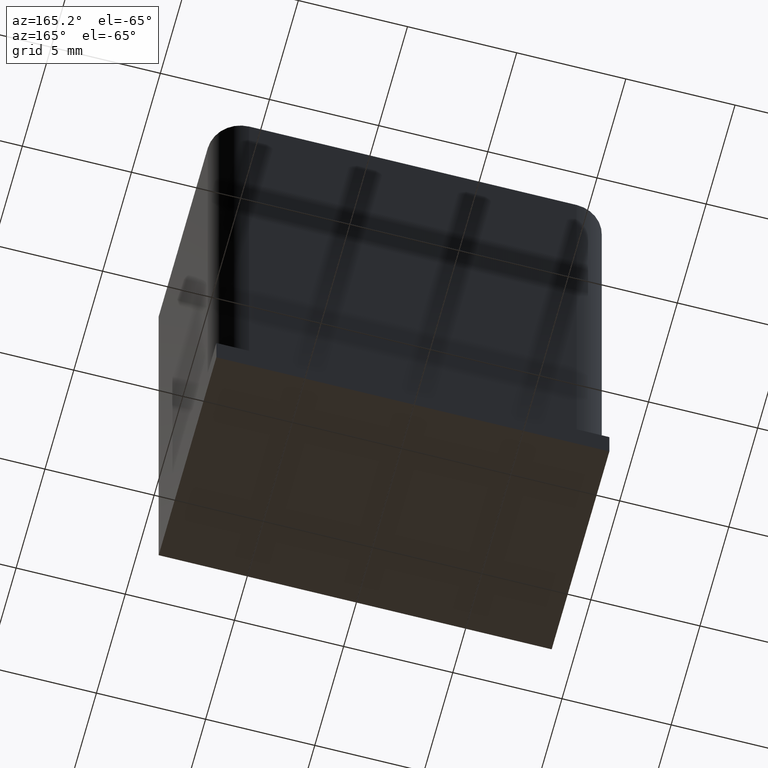
[diagram: clean part render]
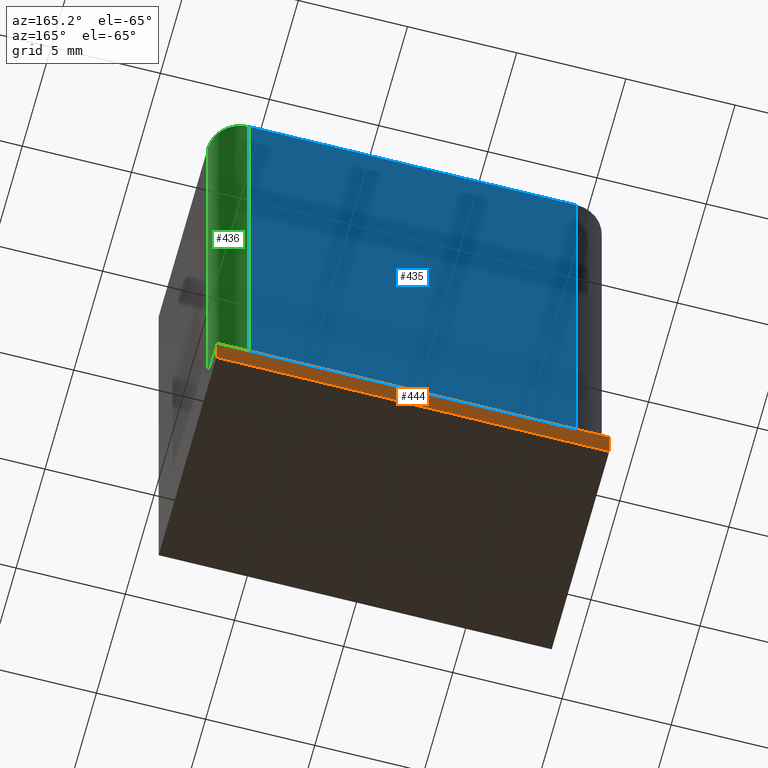
[diagram: same view with three faces highlighted in distinct colors, each labeled with its STEP entity id]
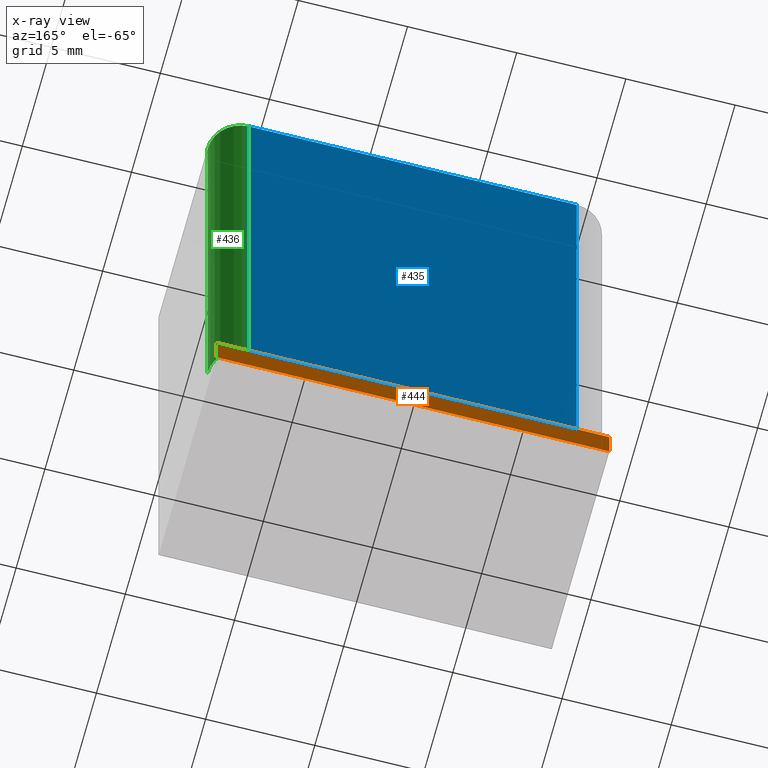
[diagram: x-ray of the same camera — body ghosted, the three highlighted faces saturated]
A machine part, auxiliary view with three faces highlighted in distinct colors.
The next image is the same camera in x-ray (body ghosted, the three faces saturated) — at least one of them is partly hidden behind the body in this view.
Their STEP definitions:

[orange] entity #444 — the highlighted planar face has unit normal (-0, 1, 0).
#47=PLANE('',#545);
#71=FACE_OUTER_BOUND('',#102,.T.);
#102=EDGE_LOOP('',(#393,#394,#395,#396));
#142=LINE('',#775,#189);
#144=LINE('',#779,#191);
#145=LINE('',#781,#192);
#146=LINE('',#782,#193);
#189=VECTOR('',#649,10.);
#191=VECTOR('',#653,10.);
#192=VECTOR('',#654,10.);
#193=VECTOR('',#655,10.);
#242=VERTEX_POINT('',#772);
#243=VERTEX_POINT('',#774);
#244=VERTEX_POINT('',#778);
#245=VERTEX_POINT('',#780);
#294=EDGE_CURVE('',#243,#242,#142,.T.);
#296=EDGE_CURVE('',#244,#242,#144,.T.);
#297=EDGE_CURVE('',#244,#245,#145,.T.);
#298=EDGE_CURVE('',#245,#243,#146,.T.);
#393=ORIENTED_EDGE('',*,*,#294,.T.);
#394=ORIENTED_EDGE('',*,*,#296,.F.);
#395=ORIENTED_EDGE('',*,*,#297,.T.);
#396=ORIENTED_EDGE('',*,*,#298,.T.);
#444=ADVANCED_FACE('',(#71),#47,.T.);
#545=AXIS2_PLACEMENT_3D('',#777,#651,#652);
#649=DIRECTION('',(1.,3.08395284618099E-16,0.));
#651=DIRECTION('center_axis',(-3.08395284618099E-16,1.,0.));
#652=DIRECTION('ref_axis',(-1.,-3.08395284618099E-16,0.));
#653=DIRECTION('',(0.,0.,1.));
#654=DIRECTION('',(-1.,-3.08395284618099E-16,0.));
#655=DIRECTION('',(0.,0.,1.));
#772=CARTESIAN_POINT('',(8.99999999999999,6.66133814775094E-15,1.5));
#774=CARTESIAN_POINT('',(-8.99999999999999,2.22044604925031E-15,1.5));
#775=CARTESIAN_POINT('',(4.5,5.82867087928207E-15,1.5));
#777=CARTESIAN_POINT('Origin',(8.99999999999999,7.21644966006352E-15,0.));
#778=CARTESIAN_POINT('',(8.99999999999999,7.21644966006352E-15,0.));
#779=CARTESIAN_POINT('',(8.99999999999999,7.21644966006352E-15,0.));
#780=CARTESIAN_POINT('',(-8.99999999999999,1.66533453693773E-15,0.));
#781=CARTESIAN_POINT('',(8.99999999999999,7.21644966006352E-15,0.));
#782=CARTESIAN_POINT('',(-8.99999999999999,1.66533453693773E-15,0.));

[blue] entity #435 — the highlighted planar face has unit normal (-0, 1, 0).
#39=PLANE('',#533);
#62=FACE_OUTER_BOUND('',#92,.T.);
#92=EDGE_LOOP('',(#349,#350,#351,#352));
#124=LINE('',#731,#171);
#125=LINE('',#734,#172);
#126=LINE('',#736,#173);
#127=LINE('',#737,#174);
#171=VECTOR('',#607,10.);
#172=VECTOR('',#610,10.);
#173=VECTOR('',#611,10.);
#174=VECTOR('',#612,10.);
#227=VERTEX_POINT('',#725);
#229=VERTEX_POINT('',#729);
#230=VERTEX_POINT('',#733);
#231=VERTEX_POINT('',#735);
#274=EDGE_CURVE('',#227,#229,#124,.T.);
#275=EDGE_CURVE('',#227,#230,#125,.T.);
#276=EDGE_CURVE('',#231,#229,#126,.T.);
#277=EDGE_CURVE('',#230,#231,#127,.T.);
#349=ORIENTED_EDGE('',*,*,#275,.F.);
#350=ORIENTED_EDGE('',*,*,#274,.T.);
#351=ORIENTED_EDGE('',*,*,#276,.F.);
#352=ORIENTED_EDGE('',*,*,#277,.F.);
#435=ADVANCED_FACE('',(#62),#39,.T.);
#533=AXIS2_PLACEMENT_3D('',#732,#608,#609);
#607=DIRECTION('',(0.,0.,1.));
#608=DIRECTION('center_axis',(-4.07081775695891E-16,1.,0.));
#609=DIRECTION('ref_axis',(-1.,-4.07081775695891E-16,0.));
#610=DIRECTION('',(1.,4.07081775695891E-16,0.));
#611=DIRECTION('',(-1.,-4.07081775695891E-16,0.));
#612=DIRECTION('',(0.,0.,1.));
#725=CARTESIAN_POINT('',(-7.5,2.,0.));
#729=CARTESIAN_POINT('',(-7.5,2.,23.5));
#731=CARTESIAN_POINT('',(-7.5,2.,0.));
#732=CARTESIAN_POINT('Origin',(7.5,2.00000000000001,0.));
#733=CARTESIAN_POINT('',(7.5,2.00000000000001,0.));
#734=CARTESIAN_POINT('',(-7.5,2.,0.));
#735=CARTESIAN_POINT('',(7.5,2.00000000000001,23.5));
#736=CARTESIAN_POINT('',(-7.5,2.,23.5));
#737=CARTESIAN_POINT('',(7.5,2.00000000000001,0.));

[green] entity #436 — the highlighted cylindrical surface (edge-blend (fillet) strip) has radius 1.5 mm, axis along (0, 0, 1).
#63=FACE_OUTER_BOUND('',#93,.T.);
#93=EDGE_LOOP('',(#353,#354,#355,#356));
#127=LINE('',#737,#174);
#128=LINE('',#743,#175);
#174=VECTOR('',#612,10.);
#175=VECTOR('',#619,10.);
#210=CIRCLE('',#535,1.5);
#211=CIRCLE('',#536,1.5);
#230=VERTEX_POINT('',#733);
#231=VERTEX_POINT('',#735);
#232=VERTEX_POINT('',#739);
#233=VERTEX_POINT('',#741);
#277=EDGE_CURVE('',#230,#231,#127,.T.);
#278=EDGE_CURVE('',#230,#232,#210,.T.);
#279=EDGE_CURVE('',#233,#231,#211,.T.);
#280=EDGE_CURVE('',#232,#233,#128,.T.);
#353=ORIENTED_EDGE('',*,*,#278,.F.);
#354=ORIENTED_EDGE('',*,*,#277,.T.);
#355=ORIENTED_EDGE('',*,*,#279,.F.);
#356=ORIENTED_EDGE('',*,*,#280,.F.);
#425=CYLINDRICAL_SURFACE('',#534,1.5);
#436=ADVANCED_FACE('',(#63),#425,.T.);
#534=AXIS2_PLACEMENT_3D('',#738,#613,#614);
#535=AXIS2_PLACEMENT_3D('',#740,#615,#616);
#536=AXIS2_PLACEMENT_3D('',#742,#617,#618);
#612=DIRECTION('',(0.,0.,1.));
#613=DIRECTION('center_axis',(0.,0.,1.));
#614=DIRECTION('ref_axis',(-1.,-7.40148683083438E-16,0.));
#615=DIRECTION('center_axis',(0.,0.,-1.));
#616=DIRECTION('ref_axis',(-1.,-7.40148683083438E-16,0.));
#617=DIRECTION('center_axis',(0.,0.,1.));
#618=DIRECTION('ref_axis',(-1.,-7.40148683083438E-16,0.));
#619=DIRECTION('',(0.,0.,1.));
#733=CARTESIAN_POINT('',(7.5,2.00000000000001,0.));
#735=CARTESIAN_POINT('',(7.5,2.00000000000001,23.5));
#737=CARTESIAN_POINT('',(7.5,2.00000000000001,0.));
#738=CARTESIAN_POINT('Origin',(7.5,0.50000000000001,0.));
#739=CARTESIAN_POINT('',(9.,0.500000000000012,0.));
#740=CARTESIAN_POINT('Origin',(7.5,0.50000000000001,0.));
#741=CARTESIAN_POINT('',(9.,0.500000000000012,23.5));
#742=CARTESIAN_POINT('Origin',(7.5,0.50000000000001,23.5));
#743=CARTESIAN_POINT('',(9.,0.500000000000012,0.));